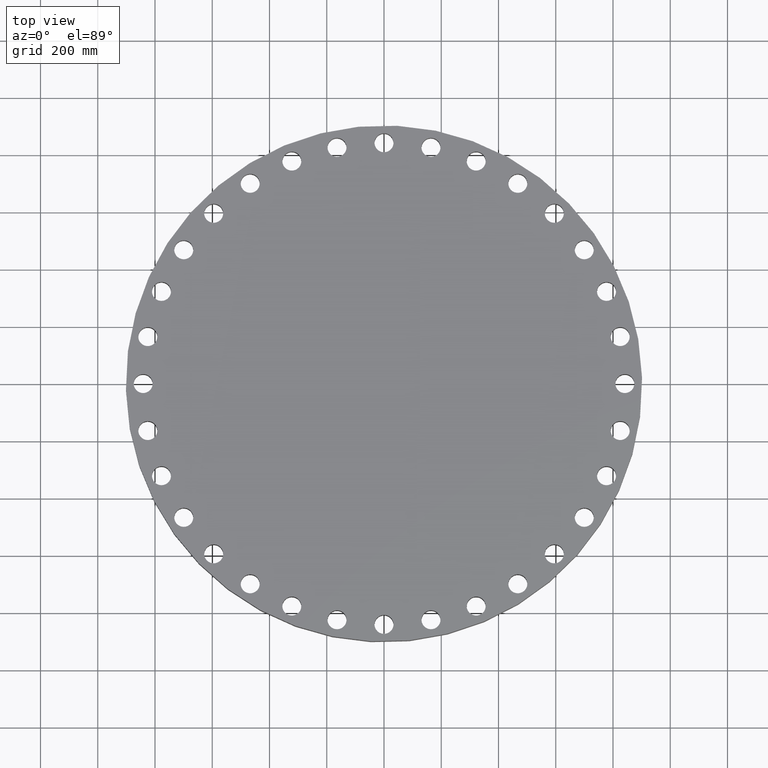
[diagram: clean part render]
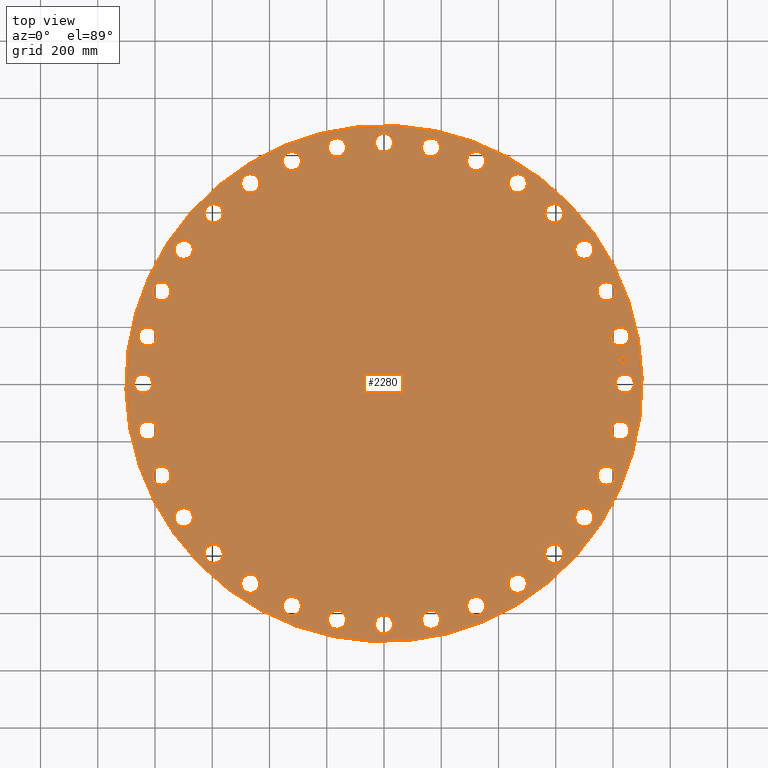
[diagram: same view with one face highlighted and labeled with its STEP entity id]
A machine part, top view. The second image highlights one B-rep face of the part: STEP entity #2280.
In plain terms, the highlighted planar face has unit normal (0, 0, -1).
Its self-contained STEP definition (entity closure, byte-faithful):
#65=AXIS2_PLACEMENT_3D('Circle Axis2P3D',#63,#64,$) ;
#82=AXIS2_PLACEMENT_3D('Circle Axis2P3D',#80,#81,$) ;
#115=AXIS2_PLACEMENT_3D('Circle Axis2P3D',#113,#114,$) ;
#139=AXIS2_PLACEMENT_3D('Circle Axis2P3D',#137,#138,$) ;
#813=AXIS2_PLACEMENT_3D('Circle Axis2P3D',#811,#812,$) ;
#825=AXIS2_PLACEMENT_3D('Circle Axis2P3D',#823,#824,$) ;
#856=AXIS2_PLACEMENT_3D('Circle Axis2P3D',#854,#855,$) ;
#868=AXIS2_PLACEMENT_3D('Circle Axis2P3D',#866,#867,$) ;
#899=AXIS2_PLACEMENT_3D('Circle Axis2P3D',#897,#898,$) ;
#911=AXIS2_PLACEMENT_3D('Circle Axis2P3D',#909,#910,$) ;
#942=AXIS2_PLACEMENT_3D('Circle Axis2P3D',#940,#941,$) ;
#954=AXIS2_PLACEMENT_3D('Circle Axis2P3D',#952,#953,$) ;
#985=AXIS2_PLACEMENT_3D('Circle Axis2P3D',#983,#984,$) ;
#997=AXIS2_PLACEMENT_3D('Circle Axis2P3D',#995,#996,$) ;
#1028=AXIS2_PLACEMENT_3D('Circle Axis2P3D',#1026,#1027,$) ;
#1040=AXIS2_PLACEMENT_3D('Circle Axis2P3D',#1038,#1039,$) ;
#1071=AXIS2_PLACEMENT_3D('Circle Axis2P3D',#1069,#1070,$) ;
#1083=AXIS2_PLACEMENT_3D('Circle Axis2P3D',#1081,#1082,$) ;
#1114=AXIS2_PLACEMENT_3D('Circle Axis2P3D',#1112,#1113,$) ;
#1126=AXIS2_PLACEMENT_3D('Circle Axis2P3D',#1124,#1125,$) ;
#1157=AXIS2_PLACEMENT_3D('Circle Axis2P3D',#1155,#1156,$) ;
#1169=AXIS2_PLACEMENT_3D('Circle Axis2P3D',#1167,#1168,$) ;
#1200=AXIS2_PLACEMENT_3D('Circle Axis2P3D',#1198,#1199,$) ;
#1212=AXIS2_PLACEMENT_3D('Circle Axis2P3D',#1210,#1211,$) ;
#1243=AXIS2_PLACEMENT_3D('Circle Axis2P3D',#1241,#1242,$) ;
#1255=AXIS2_PLACEMENT_3D('Circle Axis2P3D',#1253,#1254,$) ;
#1286=AXIS2_PLACEMENT_3D('Circle Axis2P3D',#1284,#1285,$) ;
#1298=AXIS2_PLACEMENT_3D('Circle Axis2P3D',#1296,#1297,$) ;
#1329=AXIS2_PLACEMENT_3D('Circle Axis2P3D',#1327,#1328,$) ;
#1341=AXIS2_PLACEMENT_3D('Circle Axis2P3D',#1339,#1340,$) ;
#1372=AXIS2_PLACEMENT_3D('Circle Axis2P3D',#1370,#1371,$) ;
#1384=AXIS2_PLACEMENT_3D('Circle Axis2P3D',#1382,#1383,$) ;
#1415=AXIS2_PLACEMENT_3D('Circle Axis2P3D',#1413,#1414,$) ;
#1427=AXIS2_PLACEMENT_3D('Circle Axis2P3D',#1425,#1426,$) ;
#1458=AXIS2_PLACEMENT_3D('Circle Axis2P3D',#1456,#1457,$) ;
#1470=AXIS2_PLACEMENT_3D('Circle Axis2P3D',#1468,#1469,$) ;
#1501=AXIS2_PLACEMENT_3D('Circle Axis2P3D',#1499,#1500,$) ;
#1513=AXIS2_PLACEMENT_3D('Circle Axis2P3D',#1511,#1512,$) ;
#1544=AXIS2_PLACEMENT_3D('Circle Axis2P3D',#1542,#1543,$) ;
#1556=AXIS2_PLACEMENT_3D('Circle Axis2P3D',#1554,#1555,$) ;
#1587=AXIS2_PLACEMENT_3D('Circle Axis2P3D',#1585,#1586,$) ;
#1599=AXIS2_PLACEMENT_3D('Circle Axis2P3D',#1597,#1598,$) ;
#1630=AXIS2_PLACEMENT_3D('Circle Axis2P3D',#1628,#1629,$) ;
#1642=AXIS2_PLACEMENT_3D('Circle Axis2P3D',#1640,#1641,$) ;
#1673=AXIS2_PLACEMENT_3D('Circle Axis2P3D',#1671,#1672,$) ;
#1685=AXIS2_PLACEMENT_3D('Circle Axis2P3D',#1683,#1684,$) ;
#1716=AXIS2_PLACEMENT_3D('Circle Axis2P3D',#1714,#1715,$) ;
#1728=AXIS2_PLACEMENT_3D('Circle Axis2P3D',#1726,#1727,$) ;
#1759=AXIS2_PLACEMENT_3D('Circle Axis2P3D',#1757,#1758,$) ;
#1771=AXIS2_PLACEMENT_3D('Circle Axis2P3D',#1769,#1770,$) ;
#1802=AXIS2_PLACEMENT_3D('Circle Axis2P3D',#1800,#1801,$) ;
#1814=AXIS2_PLACEMENT_3D('Circle Axis2P3D',#1812,#1813,$) ;
#1845=AXIS2_PLACEMENT_3D('Circle Axis2P3D',#1843,#1844,$) ;
#1857=AXIS2_PLACEMENT_3D('Circle Axis2P3D',#1855,#1856,$) ;
#1888=AXIS2_PLACEMENT_3D('Circle Axis2P3D',#1886,#1887,$) ;
#1900=AXIS2_PLACEMENT_3D('Circle Axis2P3D',#1898,#1899,$) ;
#1931=AXIS2_PLACEMENT_3D('Circle Axis2P3D',#1929,#1930,$) ;
#1943=AXIS2_PLACEMENT_3D('Circle Axis2P3D',#1941,#1942,$) ;
#1974=AXIS2_PLACEMENT_3D('Circle Axis2P3D',#1972,#1973,$) ;
#1986=AXIS2_PLACEMENT_3D('Circle Axis2P3D',#1984,#1985,$) ;
#2017=AXIS2_PLACEMENT_3D('Circle Axis2P3D',#2015,#2016,$) ;
#2029=AXIS2_PLACEMENT_3D('Circle Axis2P3D',#2027,#2028,$) ;
#2060=AXIS2_PLACEMENT_3D('Circle Axis2P3D',#2058,#2059,$) ;
#2072=AXIS2_PLACEMENT_3D('Circle Axis2P3D',#2070,#2071,$) ;
#2103=AXIS2_PLACEMENT_3D('Circle Axis2P3D',#2101,#2102,$) ;
#2115=AXIS2_PLACEMENT_3D('Circle Axis2P3D',#2113,#2114,$) ;
#2128=AXIS2_PLACEMENT_3D('Plane Axis2P3D',#2125,#2126,#2127) ;
#2264=AXIS2_PLACEMENT_3D('Circle Axis2P3D',#2262,#2263,$) ;
#2273=AXIS2_PLACEMENT_3D('Circle Axis2P3D',#2271,#2272,$) ;
#46=CARTESIAN_POINT('Vertex',(31.9753668441,0.628047455574,7.12000000003)) ;
#60=CARTESIAN_POINT('Vertex',(34.2746331562,-0.628047455574,7.12000000003)) ;
#63=CARTESIAN_POINT('Axis2P3D Location',(33.1250000001,0.,7.12000000003)) ;
#80=CARTESIAN_POINT('Axis2P3D Location',(33.1250000001,0.,7.12000000003)) ;
#110=CARTESIAN_POINT('Vertex',(-17.0196066205,-31.1541809472,7.12000000003)) ;
#113=CARTESIAN_POINT('Axis2P3D Location',(0.,0.,7.12000000003)) ;
#117=CARTESIAN_POINT('Vertex',(17.0196066205,31.1541809472,7.12000000003)) ;
#137=CARTESIAN_POINT('Axis2P3D Location',(0.,0.,7.12000000003)) ;
#801=CARTESIAN_POINT('Vertex',(-31.4834951165,5.62210491437,7.12000000003)) ;
#808=CARTESIAN_POINT('Vertex',(-33.4935297105,7.30262891925,7.12000000003)) ;
#811=CARTESIAN_POINT('Axis2P3D Location',(-32.4885124135,6.46236691681,7.12000000003)) ;
#823=CARTESIAN_POINT('Axis2P3D Location',(-32.4885124135,6.46236691681,7.12000000003)) ;
#844=CARTESIAN_POINT('Vertex',(29.7817303277,-11.6562029454,7.12000000003)) ;
#851=CARTESIAN_POINT('Vertex',(31.4252887014,-13.6965744489,7.12000000003)) ;
#854=CARTESIAN_POINT('Axis2P3D Location',(30.6035095146,-12.6763886971,7.12000000003)) ;
#866=CARTESIAN_POINT('Axis2P3D Location',(30.6035095146,-12.6763886971,7.12000000003)) ;
#887=CARTESIAN_POINT('Vertex',(-29.7817303277,11.6562029454,7.12000000003)) ;
#894=CARTESIAN_POINT('Vertex',(-31.4252887014,13.6965744489,7.12000000003)) ;
#897=CARTESIAN_POINT('Axis2P3D Location',(-30.6035095146,12.6763886971,7.12000000003)) ;
#909=CARTESIAN_POINT('Axis2P3D Location',(-30.6035095146,12.6763886971,7.12000000003)) ;
#930=CARTESIAN_POINT('Vertex',(26.9354703443,-17.242359634,7.12000000003)) ;
#937=CARTESIAN_POINT('Vertex',(28.149391471,-19.5641683037,7.12000000003)) ;
#940=CARTESIAN_POINT('Axis2P3D Location',(27.5424309076,-18.4032639688,7.12000000003)) ;
#952=CARTESIAN_POINT('Axis2P3D Location',(27.5424309076,-18.4032639688,7.12000000003)) ;
#973=CARTESIAN_POINT('Vertex',(-26.9354703443,17.242359634,7.12000000003)) ;
#980=CARTESIAN_POINT('Vertex',(-28.149391471,19.5641683037,7.12000000003)) ;
#983=CARTESIAN_POINT('Axis2P3D Location',(-27.5424309076,18.4032639688,7.12000000003)) ;
#995=CARTESIAN_POINT('Axis2P3D Location',(-27.5424309076,18.4032639688,7.12000000003)) ;
#1016=CARTESIAN_POINT('Vertex',(23.0540953411,-22.1659021116,7.12000000003)) ;
#1023=CARTESIAN_POINT('Vertex',(23.7917289127,-24.6799221422,7.12000000003)) ;
#1026=CARTESIAN_POINT('Axis2P3D Location',(23.4229121269,-23.4229121269,7.12000000003)) ;
#1038=CARTESIAN_POINT('Axis2P3D Location',(23.4229121269,-23.4229121269,7.12000000003)) ;
#1059=CARTESIAN_POINT('Vertex',(-23.0540953411,22.1659021116,7.12000000003)) ;
#1066=CARTESIAN_POINT('Vertex',(-23.7917289127,24.6799221422,7.12000000003)) ;
#1069=CARTESIAN_POINT('Axis2P3D Location',(-23.4229121269,23.4229121269,7.12000000003)) ;
#1081=CARTESIAN_POINT('Axis2P3D Location',(-23.4229121269,23.4229121269,7.12000000003)) ;
#1102=CARTESIAN_POINT('Vertex',(18.2867643828,-26.2376214018,7.12000000003)) ;
#1109=CARTESIAN_POINT('Vertex',(18.5197635549,-28.8472404134,7.12000000003)) ;
#1112=CARTESIAN_POINT('Axis2P3D Location',(18.4032639688,-27.5424309076,7.12000000003)) ;
#1124=CARTESIAN_POINT('Axis2P3D Location',(18.4032639688,-27.5424309076,7.12000000003)) ;
#1145=CARTESIAN_POINT('Vertex',(-18.2867643828,26.2376214018,7.12000000003)) ;
#1152=CARTESIAN_POINT('Vertex',(-18.5197635549,28.8472404134,7.12000000003)) ;
#1155=CARTESIAN_POINT('Axis2P3D Location',(-18.4032639688,27.5424309076,7.12000000003)) ;
#1167=CARTESIAN_POINT('Axis2P3D Location',(-18.4032639688,27.5424309076,7.12000000003)) ;
#1188=CARTESIAN_POINT('Vertex',(12.8166833247,-29.3010436158,7.12000000003)) ;
#1195=CARTESIAN_POINT('Vertex',(12.5360940696,-31.9059754133,7.12000000003)) ;
#1198=CARTESIAN_POINT('Axis2P3D Location',(12.6763886971,-30.6035095146,7.12000000003)) ;
#1210=CARTESIAN_POINT('Axis2P3D Location',(12.6763886971,-30.6035095146,7.12000000003)) ;
#1231=CARTESIAN_POINT('Vertex',(-12.8166833247,29.3010436158,7.12000000003)) ;
#1238=CARTESIAN_POINT('Vertex',(-12.5360940696,31.9059754133,7.12000000003)) ;
#1241=CARTESIAN_POINT('Axis2P3D Location',(-12.6763886971,30.6035095146,7.12000000003)) ;
#1253=CARTESIAN_POINT('Axis2P3D Location',(-12.6763886971,30.6035095146,7.12000000003)) ;
#1274=CARTESIAN_POINT('Vertex',(6.85406431401,-31.2384431558,7.12000000003)) ;
#1281=CARTESIAN_POINT('Vertex',(6.07066951961,-33.7385816712,7.12000000003)) ;
#1284=CARTESIAN_POINT('Axis2P3D Location',(6.46236691681,-32.4885124135,7.12000000003)) ;
#1296=CARTESIAN_POINT('Axis2P3D Location',(6.46236691681,-32.4885124135,7.12000000003)) ;
#1317=CARTESIAN_POINT('Vertex',(-6.85406431401,31.2384431558,7.12000000003)) ;
#1324=CARTESIAN_POINT('Vertex',(-6.07066951961,33.7385816712,7.12000000003)) ;
#1327=CARTESIAN_POINT('Axis2P3D Location',(-6.46236691681,32.4885124135,7.12000000003)) ;
#1339=CARTESIAN_POINT('Axis2P3D Location',(-6.46236691681,32.4885124135,7.12000000003)) ;
#1360=CARTESIAN_POINT('Vertex',(0.628047455574,-31.9753668441,7.12000000003)) ;
#1367=CARTESIAN_POINT('Vertex',(-0.628047455574,-34.2746331562,7.12000000003)) ;
#1370=CARTESIAN_POINT('Axis2P3D Location',(-2.44753849172E-015,-33.1250000001,7.12000000003)) ;
#1382=CARTESIAN_POINT('Axis2P3D Location',(-2.44753849172E-015,-33.1250000001,7.12000000003)) ;
#1403=CARTESIAN_POINT('Vertex',(-0.628047455574,31.9753668441,7.12000000003)) ;
#1410=CARTESIAN_POINT('Vertex',(0.628047455574,34.2746331562,7.12000000003)) ;
#1413=CARTESIAN_POINT('Axis2P3D Location',(-1.60910403047E-015,33.1250000001,7.12000000003)) ;
#1425=CARTESIAN_POINT('Axis2P3D Location',(-1.60910403047E-015,33.1250000001,7.12000000003)) ;
#1446=CARTESIAN_POINT('Vertex',(-5.62210491437,-31.4834951165,7.12000000003)) ;
#1453=CARTESIAN_POINT('Vertex',(-7.30262891925,-33.4935297105,7.12000000003)) ;
#1456=CARTESIAN_POINT('Axis2P3D Location',(-6.46236691681,-32.4885124135,7.12000000003)) ;
#1468=CARTESIAN_POINT('Axis2P3D Location',(-6.46236691681,-32.4885124135,7.12000000003)) ;
#1489=CARTESIAN_POINT('Vertex',(5.62210491437,31.4834951165,7.12000000003)) ;
#1496=CARTESIAN_POINT('Vertex',(7.30262891925,33.4935297105,7.12000000003)) ;
#1499=CARTESIAN_POINT('Axis2P3D Location',(6.46236691681,32.4885124135,7.12000000003)) ;
#1511=CARTESIAN_POINT('Axis2P3D Location',(6.46236691681,32.4885124135,7.12000000003)) ;
#1532=CARTESIAN_POINT('Vertex',(-11.6562029454,-29.7817303277,7.12000000003)) ;
#1539=CARTESIAN_POINT('Vertex',(-13.6965744489,-31.4252887014,7.12000000003)) ;
#1542=CARTESIAN_POINT('Axis2P3D Location',(-12.6763886971,-30.6035095146,7.12000000003)) ;
#1554=CARTESIAN_POINT('Axis2P3D Location',(-12.6763886971,-30.6035095146,7.12000000003)) ;
#1575=CARTESIAN_POINT('Vertex',(11.6562029454,29.7817303277,7.12000000003)) ;
#1582=CARTESIAN_POINT('Vertex',(13.6965744489,31.4252887014,7.12000000003)) ;
#1585=CARTESIAN_POINT('Axis2P3D Location',(12.6763886971,30.6035095146,7.12000000003)) ;
#1597=CARTESIAN_POINT('Axis2P3D Location',(12.6763886971,30.6035095146,7.12000000003)) ;
#1618=CARTESIAN_POINT('Vertex',(-17.242359634,-26.9354703443,7.12000000003)) ;
#1625=CARTESIAN_POINT('Vertex',(-19.5641683037,-28.149391471,7.12000000003)) ;
#1628=CARTESIAN_POINT('Axis2P3D Location',(-18.4032639688,-27.5424309076,7.12000000003)) ;
#1640=CARTESIAN_POINT('Axis2P3D Location',(-18.4032639688,-27.5424309076,7.12000000003)) ;
#1661=CARTESIAN_POINT('Vertex',(17.242359634,26.9354703443,7.12000000003)) ;
#1668=CARTESIAN_POINT('Vertex',(19.5641683037,28.149391471,7.12000000003)) ;
#1671=CARTESIAN_POINT('Axis2P3D Location',(18.4032639688,27.5424309076,7.12000000003)) ;
#1683=CARTESIAN_POINT('Axis2P3D Location',(18.4032639688,27.5424309076,7.12000000003)) ;
#1704=CARTESIAN_POINT('Vertex',(-22.1659021116,-23.0540953411,7.12000000003)) ;
#1711=CARTESIAN_POINT('Vertex',(-24.6799221422,-23.7917289127,7.12000000003)) ;
#1714=CARTESIAN_POINT('Axis2P3D Location',(-23.4229121269,-23.4229121269,7.12000000003)) ;
#1726=CARTESIAN_POINT('Axis2P3D Location',(-23.4229121269,-23.4229121269,7.12000000003)) ;
#1747=CARTESIAN_POINT('Vertex',(22.1659021116,23.0540953411,7.12000000003)) ;
#1754=CARTESIAN_POINT('Vertex',(24.6799221422,23.7917289127,7.12000000003)) ;
#1757=CARTESIAN_POINT('Axis2P3D Location',(23.4229121269,23.4229121269,7.12000000003)) ;
#1769=CARTESIAN_POINT('Axis2P3D Location',(23.4229121269,23.4229121269,7.12000000003)) ;
#1790=CARTESIAN_POINT('Vertex',(-26.2376214018,-18.2867643828,7.12000000003)) ;
#1797=CARTESIAN_POINT('Vertex',(-28.8472404134,-18.5197635549,7.12000000003)) ;
#1800=CARTESIAN_POINT('Axis2P3D Location',(-27.5424309076,-18.4032639688,7.12000000003)) ;
#1812=CARTESIAN_POINT('Axis2P3D Location',(-27.5424309076,-18.4032639688,7.12000000003)) ;
#1833=CARTESIAN_POINT('Vertex',(26.2376214018,18.2867643828,7.12000000003)) ;
#1840=CARTESIAN_POINT('Vertex',(28.8472404134,18.5197635549,7.12000000003)) ;
#1843=CARTESIAN_POINT('Axis2P3D Location',(27.5424309076,18.4032639688,7.12000000003)) ;
#1855=CARTESIAN_POINT('Axis2P3D Location',(27.5424309076,18.4032639688,7.12000000003)) ;
#1876=CARTESIAN_POINT('Vertex',(-29.3010436158,-12.8166833247,7.12000000003)) ;
#1883=CARTESIAN_POINT('Vertex',(-31.9059754133,-12.5360940696,7.12000000003)) ;
#1886=CARTESIAN_POINT('Axis2P3D Location',(-30.6035095146,-12.6763886971,7.12000000003)) ;
#1898=CARTESIAN_POINT('Axis2P3D Location',(-30.6035095146,-12.6763886971,7.12000000003)) ;
#1919=CARTESIAN_POINT('Vertex',(29.3010436158,12.8166833247,7.12000000003)) ;
#1926=CARTESIAN_POINT('Vertex',(31.9059754133,12.5360940696,7.12000000003)) ;
#1929=CARTESIAN_POINT('Axis2P3D Location',(30.6035095146,12.6763886971,7.12000000003)) ;
#1941=CARTESIAN_POINT('Axis2P3D Location',(30.6035095146,12.6763886971,7.12000000003)) ;
#1962=CARTESIAN_POINT('Vertex',(-31.2384431558,-6.85406431401,7.12000000003)) ;
#1969=CARTESIAN_POINT('Vertex',(-33.7385816712,-6.07066951961,7.12000000003)) ;
#1972=CARTESIAN_POINT('Axis2P3D Location',(-32.4885124135,-6.46236691681,7.12000000003)) ;
#1984=CARTESIAN_POINT('Axis2P3D Location',(-32.4885124135,-6.46236691681,7.12000000003)) ;
#2005=CARTESIAN_POINT('Vertex',(31.2384431558,6.85406431401,7.12000000003)) ;
#2012=CARTESIAN_POINT('Vertex',(33.7385816712,6.07066951961,7.12000000003)) ;
#2015=CARTESIAN_POINT('Axis2P3D Location',(32.4885124135,6.46236691681,7.12000000003)) ;
#2027=CARTESIAN_POINT('Axis2P3D Location',(32.4885124135,6.46236691681,7.12000000003)) ;
#2048=CARTESIAN_POINT('Vertex',(-31.9753668441,-0.628047455574,7.12000000003)) ;
#2055=CARTESIAN_POINT('Vertex',(-34.2746331562,0.628047455574,7.12000000003)) ;
#2058=CARTESIAN_POINT('Axis2P3D Location',(-33.1250000001,-4.05664252219E-015,7.12000000003)) ;
#2070=CARTESIAN_POINT('Axis2P3D Location',(-33.1250000001,-4.05664252219E-015,7.12000000003)) ;
#2091=CARTESIAN_POINT('Vertex',(31.4834951165,-5.62210491437,7.12000000003)) ;
#2098=CARTESIAN_POINT('Vertex',(33.4935297105,-7.30262891925,7.12000000003)) ;
#2101=CARTESIAN_POINT('Axis2P3D Location',(32.4885124135,-6.46236691681,7.12000000003)) ;
#2113=CARTESIAN_POINT('Axis2P3D Location',(32.4885124135,-6.46236691681,7.12000000003)) ;
#2125=CARTESIAN_POINT('Axis2P3D Location',(0.,35.5000000001,7.12000000003)) ;
#2262=CARTESIAN_POINT('Axis2P3D Location',(32.9654940711,3.24681777343,7.12000000003)) ;
#2266=CARTESIAN_POINT('Vertex',(32.916485501,3.74441013677,7.12000000003)) ;
#2268=CARTESIAN_POINT('Vertex',(33.0145026413,2.74922541009,7.12000000003)) ;
#2271=CARTESIAN_POINT('Axis2P3D Location',(32.9654940711,3.24681777343,7.12000000003)) ;
#64=DIRECTION('Axis2P3D Direction',(0.,-0.,-0.0393700787402)) ;
#81=DIRECTION('Axis2P3D Direction',(0.,-0.,-0.0393700787402)) ;
#114=DIRECTION('Axis2P3D Direction',(0.,0.,-0.0393700787402)) ;
#138=DIRECTION('Axis2P3D Direction',(0.,0.,-0.0393700787402)) ;
#812=DIRECTION('Axis2P3D Direction',(0.,0.,-0.0393700787402)) ;
#824=DIRECTION('Axis2P3D Direction',(0.,0.,-0.0393700787402)) ;
#855=DIRECTION('Axis2P3D Direction',(0.,-0.,-0.0393700787402)) ;
#867=DIRECTION('Axis2P3D Direction',(0.,-0.,-0.0393700787402)) ;
#898=DIRECTION('Axis2P3D Direction',(0.,0.,-0.0393700787402)) ;
#910=DIRECTION('Axis2P3D Direction',(0.,0.,-0.0393700787402)) ;
#941=DIRECTION('Axis2P3D Direction',(0.,-0.,-0.0393700787402)) ;
#953=DIRECTION('Axis2P3D Direction',(0.,-0.,-0.0393700787402)) ;
#984=DIRECTION('Axis2P3D Direction',(0.,0.,-0.0393700787402)) ;
#996=DIRECTION('Axis2P3D Direction',(0.,0.,-0.0393700787402)) ;
#1027=DIRECTION('Axis2P3D Direction',(0.,-0.,-0.0393700787402)) ;
#1039=DIRECTION('Axis2P3D Direction',(0.,-0.,-0.0393700787402)) ;
#1070=DIRECTION('Axis2P3D Direction',(0.,0.,-0.0393700787402)) ;
#1082=DIRECTION('Axis2P3D Direction',(0.,0.,-0.0393700787402)) ;
#1113=DIRECTION('Axis2P3D Direction',(0.,-0.,-0.0393700787402)) ;
#1125=DIRECTION('Axis2P3D Direction',(0.,-0.,-0.0393700787402)) ;
#1156=DIRECTION('Axis2P3D Direction',(0.,0.,-0.0393700787402)) ;
#1168=DIRECTION('Axis2P3D Direction',(0.,0.,-0.0393700787402)) ;
#1199=DIRECTION('Axis2P3D Direction',(0.,-0.,-0.0393700787402)) ;
#1211=DIRECTION('Axis2P3D Direction',(0.,-0.,-0.0393700787402)) ;
#1242=DIRECTION('Axis2P3D Direction',(0.,0.,-0.0393700787402)) ;
#1254=DIRECTION('Axis2P3D Direction',(0.,0.,-0.0393700787402)) ;
#1285=DIRECTION('Axis2P3D Direction',(0.,-0.,-0.0393700787402)) ;
#1297=DIRECTION('Axis2P3D Direction',(0.,-0.,-0.0393700787402)) ;
#1328=DIRECTION('Axis2P3D Direction',(0.,0.,-0.0393700787402)) ;
#1340=DIRECTION('Axis2P3D Direction',(0.,0.,-0.0393700787402)) ;
#1371=DIRECTION('Axis2P3D Direction',(0.,-0.,-0.0393700787402)) ;
#1383=DIRECTION('Axis2P3D Direction',(0.,-0.,-0.0393700787402)) ;
#1414=DIRECTION('Axis2P3D Direction',(0.,0.,-0.0393700787402)) ;
#1426=DIRECTION('Axis2P3D Direction',(0.,0.,-0.0393700787402)) ;
#1457=DIRECTION('Axis2P3D Direction',(-0.,0.,-0.0393700787402)) ;
#1469=DIRECTION('Axis2P3D Direction',(-0.,0.,-0.0393700787402)) ;
#1500=DIRECTION('Axis2P3D Direction',(0.,0.,-0.0393700787402)) ;
#1512=DIRECTION('Axis2P3D Direction',(0.,0.,-0.0393700787402)) ;
#1543=DIRECTION('Axis2P3D Direction',(-0.,0.,-0.0393700787402)) ;
#1555=DIRECTION('Axis2P3D Direction',(-0.,0.,-0.0393700787402)) ;
#1586=DIRECTION('Axis2P3D Direction',(0.,0.,-0.0393700787402)) ;
#1598=DIRECTION('Axis2P3D Direction',(0.,0.,-0.0393700787402)) ;
#1629=DIRECTION('Axis2P3D Direction',(-0.,0.,-0.0393700787402)) ;
#1641=DIRECTION('Axis2P3D Direction',(-0.,0.,-0.0393700787402)) ;
#1672=DIRECTION('Axis2P3D Direction',(0.,0.,-0.0393700787402)) ;
#1684=DIRECTION('Axis2P3D Direction',(0.,0.,-0.0393700787402)) ;
#1715=DIRECTION('Axis2P3D Direction',(-0.,0.,-0.0393700787402)) ;
#1727=DIRECTION('Axis2P3D Direction',(-0.,0.,-0.0393700787402)) ;
#1758=DIRECTION('Axis2P3D Direction',(0.,0.,-0.0393700787402)) ;
#1770=DIRECTION('Axis2P3D Direction',(0.,0.,-0.0393700787402)) ;
#1801=DIRECTION('Axis2P3D Direction',(-0.,0.,-0.0393700787402)) ;
#1813=DIRECTION('Axis2P3D Direction',(-0.,0.,-0.0393700787402)) ;
#1844=DIRECTION('Axis2P3D Direction',(0.,0.,-0.0393700787402)) ;
#1856=DIRECTION('Axis2P3D Direction',(0.,0.,-0.0393700787402)) ;
#1887=DIRECTION('Axis2P3D Direction',(-0.,0.,-0.0393700787402)) ;
#1899=DIRECTION('Axis2P3D Direction',(-0.,0.,-0.0393700787402)) ;
#1930=DIRECTION('Axis2P3D Direction',(0.,0.,-0.0393700787402)) ;
#1942=DIRECTION('Axis2P3D Direction',(0.,0.,-0.0393700787402)) ;
#1973=DIRECTION('Axis2P3D Direction',(-0.,0.,-0.0393700787402)) ;
#1985=DIRECTION('Axis2P3D Direction',(-0.,0.,-0.0393700787402)) ;
#2016=DIRECTION('Axis2P3D Direction',(0.,0.,-0.0393700787402)) ;
#2028=DIRECTION('Axis2P3D Direction',(0.,0.,-0.0393700787402)) ;
#2059=DIRECTION('Axis2P3D Direction',(-0.,0.,-0.0393700787402)) ;
#2071=DIRECTION('Axis2P3D Direction',(-0.,0.,-0.0393700787402)) ;
#2102=DIRECTION('Axis2P3D Direction',(0.,-0.,-0.0393700787402)) ;
#2114=DIRECTION('Axis2P3D Direction',(0.,-0.,-0.0393700787402)) ;
#2126=DIRECTION('Axis2P3D Direction',(0.,0.,-0.0393700787402)) ;
#2127=DIRECTION('Axis2P3D XDirection',(0.0393700787402,0.,0.)) ;
#2263=DIRECTION('Axis2P3D Direction',(0.,0.,-0.0393700787402)) ;
#2272=DIRECTION('Axis2P3D Direction',(0.,0.,-0.0393700787402)) ;
#2131=ORIENTED_EDGE('',*,*,#141,.F.) ;
#2132=ORIENTED_EDGE('',*,*,#119,.F.) ;
#2135=ORIENTED_EDGE('',*,*,#67,.T.) ;
#2136=ORIENTED_EDGE('',*,*,#84,.T.) ;
#2139=ORIENTED_EDGE('',*,*,#2117,.T.) ;
#2140=ORIENTED_EDGE('',*,*,#2105,.T.) ;
#2143=ORIENTED_EDGE('',*,*,#870,.T.) ;
#2144=ORIENTED_EDGE('',*,*,#858,.T.) ;
#2147=ORIENTED_EDGE('',*,*,#956,.T.) ;
#2148=ORIENTED_EDGE('',*,*,#944,.T.) ;
#2151=ORIENTED_EDGE('',*,*,#1042,.T.) ;
#2152=ORIENTED_EDGE('',*,*,#1030,.T.) ;
#2155=ORIENTED_EDGE('',*,*,#1128,.T.) ;
#2156=ORIENTED_EDGE('',*,*,#1116,.T.) ;
#2159=ORIENTED_EDGE('',*,*,#1214,.T.) ;
#2160=ORIENTED_EDGE('',*,*,#1202,.T.) ;
#2163=ORIENTED_EDGE('',*,*,#1300,.T.) ;
#2164=ORIENTED_EDGE('',*,*,#1288,.T.) ;
#2167=ORIENTED_EDGE('',*,*,#1386,.T.) ;
#2168=ORIENTED_EDGE('',*,*,#1374,.T.) ;
#2171=ORIENTED_EDGE('',*,*,#1472,.T.) ;
#2172=ORIENTED_EDGE('',*,*,#1460,.T.) ;
#2175=ORIENTED_EDGE('',*,*,#1558,.T.) ;
#2176=ORIENTED_EDGE('',*,*,#1546,.T.) ;
#2179=ORIENTED_EDGE('',*,*,#1644,.T.) ;
#2180=ORIENTED_EDGE('',*,*,#1632,.T.) ;
#2183=ORIENTED_EDGE('',*,*,#1730,.T.) ;
#2184=ORIENTED_EDGE('',*,*,#1718,.T.) ;
#2187=ORIENTED_EDGE('',*,*,#1816,.T.) ;
#2188=ORIENTED_EDGE('',*,*,#1804,.T.) ;
#2191=ORIENTED_EDGE('',*,*,#1902,.T.) ;
#2192=ORIENTED_EDGE('',*,*,#1890,.T.) ;
#2195=ORIENTED_EDGE('',*,*,#1988,.T.) ;
#2196=ORIENTED_EDGE('',*,*,#1976,.T.) ;
#2199=ORIENTED_EDGE('',*,*,#2074,.T.) ;
#2200=ORIENTED_EDGE('',*,*,#2062,.T.) ;
#2203=ORIENTED_EDGE('',*,*,#827,.T.) ;
#2204=ORIENTED_EDGE('',*,*,#815,.T.) ;
#2207=ORIENTED_EDGE('',*,*,#913,.T.) ;
#2208=ORIENTED_EDGE('',*,*,#901,.T.) ;
#2211=ORIENTED_EDGE('',*,*,#999,.T.) ;
#2212=ORIENTED_EDGE('',*,*,#987,.T.) ;
#2215=ORIENTED_EDGE('',*,*,#1085,.T.) ;
#2216=ORIENTED_EDGE('',*,*,#1073,.T.) ;
#2219=ORIENTED_EDGE('',*,*,#1171,.T.) ;
#2220=ORIENTED_EDGE('',*,*,#1159,.T.) ;
#2223=ORIENTED_EDGE('',*,*,#1257,.T.) ;
#2224=ORIENTED_EDGE('',*,*,#1245,.T.) ;
#2227=ORIENTED_EDGE('',*,*,#1343,.T.) ;
#2228=ORIENTED_EDGE('',*,*,#1331,.T.) ;
#2231=ORIENTED_EDGE('',*,*,#1429,.T.) ;
#2232=ORIENTED_EDGE('',*,*,#1417,.T.) ;
#2235=ORIENTED_EDGE('',*,*,#1515,.T.) ;
#2236=ORIENTED_EDGE('',*,*,#1503,.T.) ;
#2239=ORIENTED_EDGE('',*,*,#1601,.T.) ;
#2240=ORIENTED_EDGE('',*,*,#1589,.T.) ;
#2243=ORIENTED_EDGE('',*,*,#1687,.T.) ;
#2244=ORIENTED_EDGE('',*,*,#1675,.T.) ;
#2247=ORIENTED_EDGE('',*,*,#1773,.T.) ;
#2248=ORIENTED_EDGE('',*,*,#1761,.T.) ;
#2251=ORIENTED_EDGE('',*,*,#1859,.T.) ;
#2252=ORIENTED_EDGE('',*,*,#1847,.T.) ;
#2255=ORIENTED_EDGE('',*,*,#1945,.T.) ;
#2256=ORIENTED_EDGE('',*,*,#1933,.T.) ;
#2259=ORIENTED_EDGE('',*,*,#2031,.T.) ;
#2260=ORIENTED_EDGE('',*,*,#2019,.T.) ;
#2277=ORIENTED_EDGE('',*,*,#2270,.T.) ;
#2278=ORIENTED_EDGE('',*,*,#2275,.T.) ;
#2137=FACE_BOUND('',#2134,.T.) ;
#2141=FACE_BOUND('',#2138,.T.) ;
#2145=FACE_BOUND('',#2142,.T.) ;
#2149=FACE_BOUND('',#2146,.T.) ;
#2153=FACE_BOUND('',#2150,.T.) ;
#2157=FACE_BOUND('',#2154,.T.) ;
#2161=FACE_BOUND('',#2158,.T.) ;
#2165=FACE_BOUND('',#2162,.T.) ;
#2169=FACE_BOUND('',#2166,.T.) ;
#2173=FACE_BOUND('',#2170,.T.) ;
#2177=FACE_BOUND('',#2174,.T.) ;
#2181=FACE_BOUND('',#2178,.T.) ;
#2185=FACE_BOUND('',#2182,.T.) ;
#2189=FACE_BOUND('',#2186,.T.) ;
#2193=FACE_BOUND('',#2190,.T.) ;
#2197=FACE_BOUND('',#2194,.T.) ;
#2201=FACE_BOUND('',#2198,.T.) ;
#2205=FACE_BOUND('',#2202,.T.) ;
#2209=FACE_BOUND('',#2206,.T.) ;
#2213=FACE_BOUND('',#2210,.T.) ;
#2217=FACE_BOUND('',#2214,.T.) ;
#2221=FACE_BOUND('',#2218,.T.) ;
#2225=FACE_BOUND('',#2222,.T.) ;
#2229=FACE_BOUND('',#2226,.T.) ;
#2233=FACE_BOUND('',#2230,.T.) ;
#2237=FACE_BOUND('',#2234,.T.) ;
#2241=FACE_BOUND('',#2238,.T.) ;
#2245=FACE_BOUND('',#2242,.T.) ;
#2249=FACE_BOUND('',#2246,.T.) ;
#2253=FACE_BOUND('',#2250,.T.) ;
#2257=FACE_BOUND('',#2254,.T.) ;
#2261=FACE_BOUND('',#2258,.T.) ;
#2279=FACE_BOUND('',#2276,.T.) ;
#2280=ADVANCED_FACE('PartBody',(#2133,#2137,#2141,#2145,#2149,#2153,#2157,#2161,#2165,#2169,#2173,#2177,#2181,#2185,#2189,#2193,#2197,#2201,#2205,#2209,#2213,#2217,#2221,#2225,#2229,#2233,#2237,#2241,#2245,#2249,#2253,#2257,#2261,#2279),#2129,.F.) ;
#66=CIRCLE('generated circle',#65,1.31000000001) ;
#83=CIRCLE('generated circle',#82,1.31000000001) ;
#116=CIRCLE('generated circle',#115,35.5000000001) ;
#140=CIRCLE('generated circle',#139,35.5000000001) ;
#814=CIRCLE('generated circle',#813,1.31000000001) ;
#826=CIRCLE('generated circle',#825,1.31000000001) ;
#857=CIRCLE('generated circle',#856,1.31000000001) ;
#869=CIRCLE('generated circle',#868,1.31000000001) ;
#900=CIRCLE('generated circle',#899,1.31000000001) ;
#912=CIRCLE('generated circle',#911,1.31000000001) ;
#943=CIRCLE('generated circle',#942,1.31000000001) ;
#955=CIRCLE('generated circle',#954,1.31000000001) ;
#986=CIRCLE('generated circle',#985,1.31000000001) ;
#998=CIRCLE('generated circle',#997,1.31000000001) ;
#1029=CIRCLE('generated circle',#1028,1.31000000001) ;
#1041=CIRCLE('generated circle',#1040,1.31000000001) ;
#1072=CIRCLE('generated circle',#1071,1.31000000001) ;
#1084=CIRCLE('generated circle',#1083,1.31000000001) ;
#1115=CIRCLE('generated circle',#1114,1.31000000001) ;
#1127=CIRCLE('generated circle',#1126,1.31000000001) ;
#1158=CIRCLE('generated circle',#1157,1.31000000001) ;
#1170=CIRCLE('generated circle',#1169,1.31000000001) ;
#1201=CIRCLE('generated circle',#1200,1.31000000001) ;
#1213=CIRCLE('generated circle',#1212,1.31000000001) ;
#1244=CIRCLE('generated circle',#1243,1.31000000001) ;
#1256=CIRCLE('generated circle',#1255,1.31000000001) ;
#1287=CIRCLE('generated circle',#1286,1.31000000001) ;
#1299=CIRCLE('generated circle',#1298,1.31000000001) ;
#1330=CIRCLE('generated circle',#1329,1.31000000001) ;
#1342=CIRCLE('generated circle',#1341,1.31000000001) ;
#1373=CIRCLE('generated circle',#1372,1.31000000001) ;
#1385=CIRCLE('generated circle',#1384,1.31000000001) ;
#1416=CIRCLE('generated circle',#1415,1.31000000001) ;
#1428=CIRCLE('generated circle',#1427,1.31000000001) ;
#1459=CIRCLE('generated circle',#1458,1.31000000001) ;
#1471=CIRCLE('generated circle',#1470,1.31000000001) ;
#1502=CIRCLE('generated circle',#1501,1.31000000001) ;
#1514=CIRCLE('generated circle',#1513,1.31000000001) ;
#1545=CIRCLE('generated circle',#1544,1.31000000001) ;
#1557=CIRCLE('generated circle',#1556,1.31000000001) ;
#1588=CIRCLE('generated circle',#1587,1.31000000001) ;
#1600=CIRCLE('generated circle',#1599,1.31000000001) ;
#1631=CIRCLE('generated circle',#1630,1.31000000001) ;
#1643=CIRCLE('generated circle',#1642,1.31000000001) ;
#1674=CIRCLE('generated circle',#1673,1.31000000001) ;
#1686=CIRCLE('generated circle',#1685,1.31000000001) ;
#1717=CIRCLE('generated circle',#1716,1.31000000001) ;
#1729=CIRCLE('generated circle',#1728,1.31000000001) ;
#1760=CIRCLE('generated circle',#1759,1.31000000001) ;
#1772=CIRCLE('generated circle',#1771,1.31000000001) ;
#1803=CIRCLE('generated circle',#1802,1.31000000001) ;
#1815=CIRCLE('generated circle',#1814,1.31000000001) ;
#1846=CIRCLE('generated circle',#1845,1.31000000001) ;
#1858=CIRCLE('generated circle',#1857,1.31000000001) ;
#1889=CIRCLE('generated circle',#1888,1.31000000001) ;
#1901=CIRCLE('generated circle',#1900,1.31000000001) ;
#1932=CIRCLE('generated circle',#1931,1.31000000001) ;
#1944=CIRCLE('generated circle',#1943,1.31000000001) ;
#1975=CIRCLE('generated circle',#1974,1.31000000001) ;
#1987=CIRCLE('generated circle',#1986,1.31000000001) ;
#2018=CIRCLE('generated circle',#2017,1.31000000001) ;
#2030=CIRCLE('generated circle',#2029,1.31000000001) ;
#2061=CIRCLE('generated circle',#2060,1.31000000001) ;
#2073=CIRCLE('generated circle',#2072,1.31000000001) ;
#2104=CIRCLE('generated circle',#2103,1.31000000001) ;
#2116=CIRCLE('generated circle',#2115,1.31000000001) ;
#2265=CIRCLE('generated circle',#2264,0.500000000002) ;
#2274=CIRCLE('generated circle',#2273,0.500000000002) ;
#67=EDGE_CURVE('',#47,#61,#66,.T.) ;
#84=EDGE_CURVE('',#61,#47,#83,.T.) ;
#119=EDGE_CURVE('',#111,#118,#116,.T.) ;
#141=EDGE_CURVE('',#118,#111,#140,.T.) ;
#815=EDGE_CURVE('',#802,#809,#814,.T.) ;
#827=EDGE_CURVE('',#809,#802,#826,.T.) ;
#858=EDGE_CURVE('',#845,#852,#857,.T.) ;
#870=EDGE_CURVE('',#852,#845,#869,.T.) ;
#901=EDGE_CURVE('',#888,#895,#900,.T.) ;
#913=EDGE_CURVE('',#895,#888,#912,.T.) ;
#944=EDGE_CURVE('',#931,#938,#943,.T.) ;
#956=EDGE_CURVE('',#938,#931,#955,.T.) ;
#987=EDGE_CURVE('',#974,#981,#986,.T.) ;
#999=EDGE_CURVE('',#981,#974,#998,.T.) ;
#1030=EDGE_CURVE('',#1017,#1024,#1029,.T.) ;
#1042=EDGE_CURVE('',#1024,#1017,#1041,.T.) ;
#1073=EDGE_CURVE('',#1060,#1067,#1072,.T.) ;
#1085=EDGE_CURVE('',#1067,#1060,#1084,.T.) ;
#1116=EDGE_CURVE('',#1103,#1110,#1115,.T.) ;
#1128=EDGE_CURVE('',#1110,#1103,#1127,.T.) ;
#1159=EDGE_CURVE('',#1146,#1153,#1158,.T.) ;
#1171=EDGE_CURVE('',#1153,#1146,#1170,.T.) ;
#1202=EDGE_CURVE('',#1189,#1196,#1201,.T.) ;
#1214=EDGE_CURVE('',#1196,#1189,#1213,.T.) ;
#1245=EDGE_CURVE('',#1232,#1239,#1244,.T.) ;
#1257=EDGE_CURVE('',#1239,#1232,#1256,.T.) ;
#1288=EDGE_CURVE('',#1275,#1282,#1287,.T.) ;
#1300=EDGE_CURVE('',#1282,#1275,#1299,.T.) ;
#1331=EDGE_CURVE('',#1318,#1325,#1330,.T.) ;
#1343=EDGE_CURVE('',#1325,#1318,#1342,.T.) ;
#1374=EDGE_CURVE('',#1361,#1368,#1373,.T.) ;
#1386=EDGE_CURVE('',#1368,#1361,#1385,.T.) ;
#1417=EDGE_CURVE('',#1404,#1411,#1416,.T.) ;
#1429=EDGE_CURVE('',#1411,#1404,#1428,.T.) ;
#1460=EDGE_CURVE('',#1447,#1454,#1459,.T.) ;
#1472=EDGE_CURVE('',#1454,#1447,#1471,.T.) ;
#1503=EDGE_CURVE('',#1490,#1497,#1502,.T.) ;
#1515=EDGE_CURVE('',#1497,#1490,#1514,.T.) ;
#1546=EDGE_CURVE('',#1533,#1540,#1545,.T.) ;
#1558=EDGE_CURVE('',#1540,#1533,#1557,.T.) ;
#1589=EDGE_CURVE('',#1576,#1583,#1588,.T.) ;
#1601=EDGE_CURVE('',#1583,#1576,#1600,.T.) ;
#1632=EDGE_CURVE('',#1619,#1626,#1631,.T.) ;
#1644=EDGE_CURVE('',#1626,#1619,#1643,.T.) ;
#1675=EDGE_CURVE('',#1662,#1669,#1674,.T.) ;
#1687=EDGE_CURVE('',#1669,#1662,#1686,.T.) ;
#1718=EDGE_CURVE('',#1705,#1712,#1717,.T.) ;
#1730=EDGE_CURVE('',#1712,#1705,#1729,.T.) ;
#1761=EDGE_CURVE('',#1748,#1755,#1760,.T.) ;
#1773=EDGE_CURVE('',#1755,#1748,#1772,.T.) ;
#1804=EDGE_CURVE('',#1791,#1798,#1803,.T.) ;
#1816=EDGE_CURVE('',#1798,#1791,#1815,.T.) ;
#1847=EDGE_CURVE('',#1834,#1841,#1846,.T.) ;
#1859=EDGE_CURVE('',#1841,#1834,#1858,.T.) ;
#1890=EDGE_CURVE('',#1877,#1884,#1889,.T.) ;
#1902=EDGE_CURVE('',#1884,#1877,#1901,.T.) ;
#1933=EDGE_CURVE('',#1920,#1927,#1932,.T.) ;
#1945=EDGE_CURVE('',#1927,#1920,#1944,.T.) ;
#1976=EDGE_CURVE('',#1963,#1970,#1975,.T.) ;
#1988=EDGE_CURVE('',#1970,#1963,#1987,.T.) ;
#2019=EDGE_CURVE('',#2006,#2013,#2018,.T.) ;
#2031=EDGE_CURVE('',#2013,#2006,#2030,.T.) ;
#2062=EDGE_CURVE('',#2049,#2056,#2061,.T.) ;
#2074=EDGE_CURVE('',#2056,#2049,#2073,.T.) ;
#2105=EDGE_CURVE('',#2092,#2099,#2104,.T.) ;
#2117=EDGE_CURVE('',#2099,#2092,#2116,.T.) ;
#2270=EDGE_CURVE('',#2267,#2269,#2265,.T.) ;
#2275=EDGE_CURVE('',#2269,#2267,#2274,.T.) ;
#2130=EDGE_LOOP('',(#2131,#2132)) ;
#2134=EDGE_LOOP('',(#2135,#2136)) ;
#2138=EDGE_LOOP('',(#2139,#2140)) ;
#2142=EDGE_LOOP('',(#2143,#2144)) ;
#2146=EDGE_LOOP('',(#2147,#2148)) ;
#2150=EDGE_LOOP('',(#2151,#2152)) ;
#2154=EDGE_LOOP('',(#2155,#2156)) ;
#2158=EDGE_LOOP('',(#2159,#2160)) ;
#2162=EDGE_LOOP('',(#2163,#2164)) ;
#2166=EDGE_LOOP('',(#2167,#2168)) ;
#2170=EDGE_LOOP('',(#2171,#2172)) ;
#2174=EDGE_LOOP('',(#2175,#2176)) ;
#2178=EDGE_LOOP('',(#2179,#2180)) ;
#2182=EDGE_LOOP('',(#2183,#2184)) ;
#2186=EDGE_LOOP('',(#2187,#2188)) ;
#2190=EDGE_LOOP('',(#2191,#2192)) ;
#2194=EDGE_LOOP('',(#2195,#2196)) ;
#2198=EDGE_LOOP('',(#2199,#2200)) ;
#2202=EDGE_LOOP('',(#2203,#2204)) ;
#2206=EDGE_LOOP('',(#2207,#2208)) ;
#2210=EDGE_LOOP('',(#2211,#2212)) ;
#2214=EDGE_LOOP('',(#2215,#2216)) ;
#2218=EDGE_LOOP('',(#2219,#2220)) ;
#2222=EDGE_LOOP('',(#2223,#2224)) ;
#2226=EDGE_LOOP('',(#2227,#2228)) ;
#2230=EDGE_LOOP('',(#2231,#2232)) ;
#2234=EDGE_LOOP('',(#2235,#2236)) ;
#2238=EDGE_LOOP('',(#2239,#2240)) ;
#2242=EDGE_LOOP('',(#2243,#2244)) ;
#2246=EDGE_LOOP('',(#2247,#2248)) ;
#2250=EDGE_LOOP('',(#2251,#2252)) ;
#2254=EDGE_LOOP('',(#2255,#2256)) ;
#2258=EDGE_LOOP('',(#2259,#2260)) ;
#2276=EDGE_LOOP('',(#2277,#2278)) ;
#2133=FACE_OUTER_BOUND('',#2130,.T.) ;
#2129=PLANE('',#2128) ;
#47=VERTEX_POINT('',#46) ;
#61=VERTEX_POINT('',#60) ;
#111=VERTEX_POINT('',#110) ;
#118=VERTEX_POINT('',#117) ;
#802=VERTEX_POINT('',#801) ;
#809=VERTEX_POINT('',#808) ;
#845=VERTEX_POINT('',#844) ;
#852=VERTEX_POINT('',#851) ;
#888=VERTEX_POINT('',#887) ;
#895=VERTEX_POINT('',#894) ;
#931=VERTEX_POINT('',#930) ;
#938=VERTEX_POINT('',#937) ;
#974=VERTEX_POINT('',#973) ;
#981=VERTEX_POINT('',#980) ;
#1017=VERTEX_POINT('',#1016) ;
#1024=VERTEX_POINT('',#1023) ;
#1060=VERTEX_POINT('',#1059) ;
#1067=VERTEX_POINT('',#1066) ;
#1103=VERTEX_POINT('',#1102) ;
#1110=VERTEX_POINT('',#1109) ;
#1146=VERTEX_POINT('',#1145) ;
#1153=VERTEX_POINT('',#1152) ;
#1189=VERTEX_POINT('',#1188) ;
#1196=VERTEX_POINT('',#1195) ;
#1232=VERTEX_POINT('',#1231) ;
#1239=VERTEX_POINT('',#1238) ;
#1275=VERTEX_POINT('',#1274) ;
#1282=VERTEX_POINT('',#1281) ;
#1318=VERTEX_POINT('',#1317) ;
#1325=VERTEX_POINT('',#1324) ;
#1361=VERTEX_POINT('',#1360) ;
#1368=VERTEX_POINT('',#1367) ;
#1404=VERTEX_POINT('',#1403) ;
#1411=VERTEX_POINT('',#1410) ;
#1447=VERTEX_POINT('',#1446) ;
#1454=VERTEX_POINT('',#1453) ;
#1490=VERTEX_POINT('',#1489) ;
#1497=VERTEX_POINT('',#1496) ;
#1533=VERTEX_POINT('',#1532) ;
#1540=VERTEX_POINT('',#1539) ;
#1576=VERTEX_POINT('',#1575) ;
#1583=VERTEX_POINT('',#1582) ;
#1619=VERTEX_POINT('',#1618) ;
#1626=VERTEX_POINT('',#1625) ;
#1662=VERTEX_POINT('',#1661) ;
#1669=VERTEX_POINT('',#1668) ;
#1705=VERTEX_POINT('',#1704) ;
#1712=VERTEX_POINT('',#1711) ;
#1748=VERTEX_POINT('',#1747) ;
#1755=VERTEX_POINT('',#1754) ;
#1791=VERTEX_POINT('',#1790) ;
#1798=VERTEX_POINT('',#1797) ;
#1834=VERTEX_POINT('',#1833) ;
#1841=VERTEX_POINT('',#1840) ;
#1877=VERTEX_POINT('',#1876) ;
#1884=VERTEX_POINT('',#1883) ;
#1920=VERTEX_POINT('',#1919) ;
#1927=VERTEX_POINT('',#1926) ;
#1963=VERTEX_POINT('',#1962) ;
#1970=VERTEX_POINT('',#1969) ;
#2006=VERTEX_POINT('',#2005) ;
#2013=VERTEX_POINT('',#2012) ;
#2049=VERTEX_POINT('',#2048) ;
#2056=VERTEX_POINT('',#2055) ;
#2092=VERTEX_POINT('',#2091) ;
#2099=VERTEX_POINT('',#2098) ;
#2267=VERTEX_POINT('',#2266) ;
#2269=VERTEX_POINT('',#2268) ;